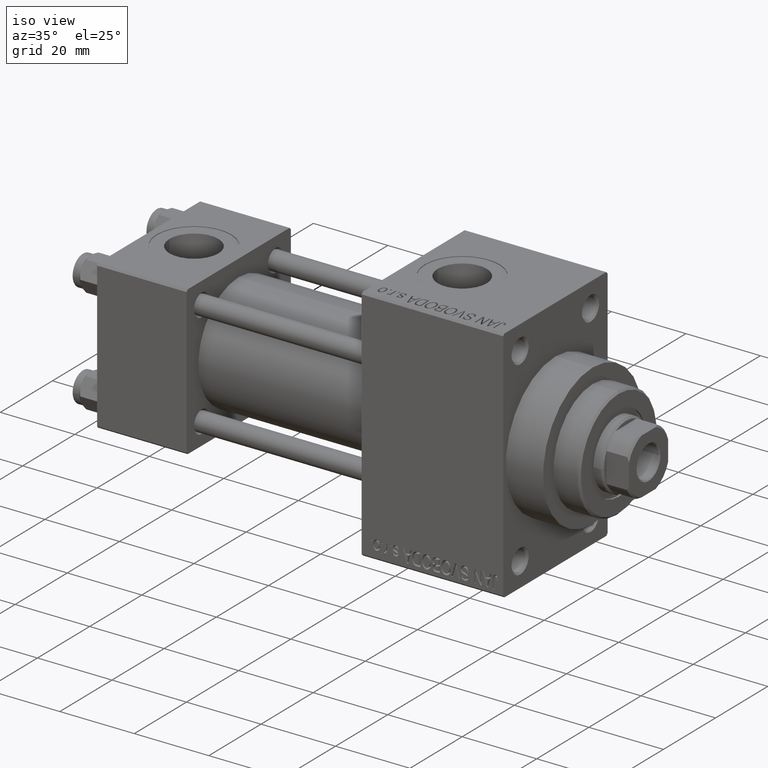
[diagram: clean part render]
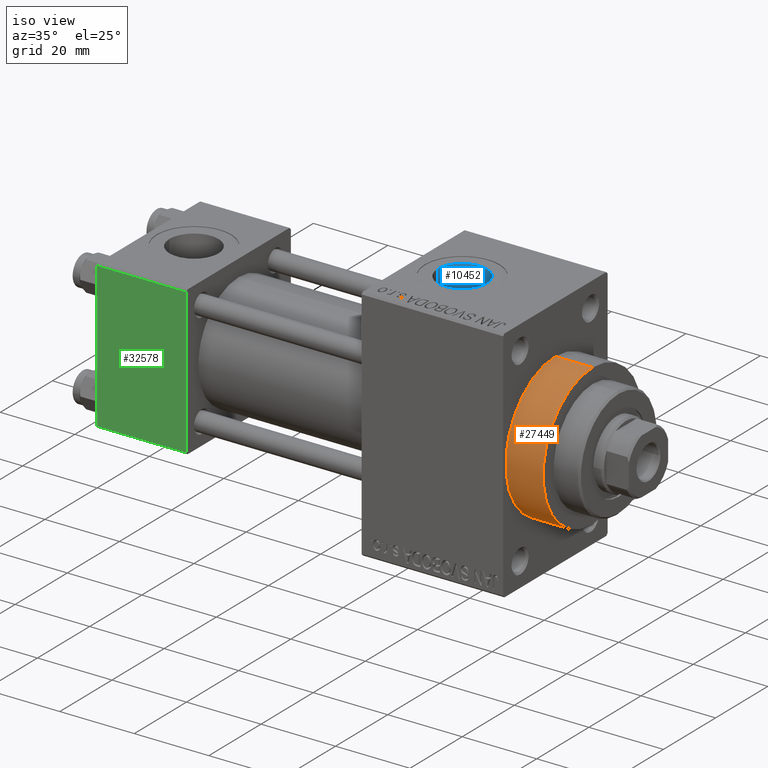
[diagram: same view with three faces highlighted in distinct colors, each labeled with its STEP entity id]
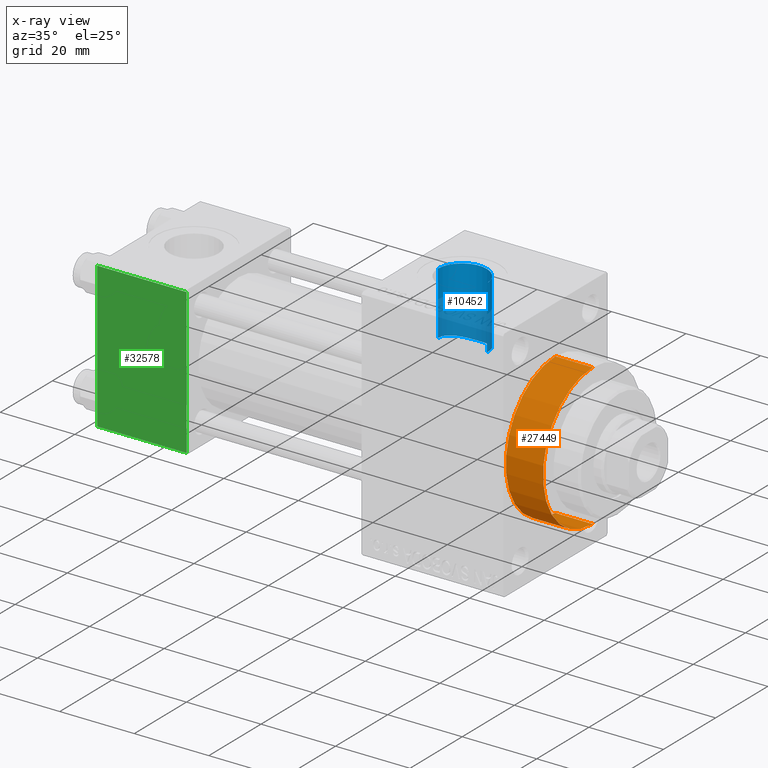
[diagram: x-ray of the same camera — body ghosted, the three highlighted faces saturated]
A machine part, iso view with three faces highlighted in distinct colors.
The next image is the same camera in x-ray (body ghosted, the three faces saturated) — at least one of them is partly hidden behind the body in this view.
Their STEP definitions:

[orange] entity #27449 — the highlighted cylindrical surface (partial cylindrical patch) has radius 19 mm, axis along (-1, -0, -0).
#84 = AXIS2_PLACEMENT_3D ( 'NONE', #14427, #40137, #22278 ) ;
#637 = VERTEX_POINT ( 'NONE', #45757 ) ;
#1617 = VERTEX_POINT ( 'NONE', #6230 ) ;
#4196 = FACE_OUTER_BOUND ( 'NONE', #10218, .T. ) ;
#5288 = AXIS2_PLACEMENT_3D ( 'NONE', #16024, #19576, #34108 ) ;
#6230 = CARTESIAN_POINT ( 'NONE',  ( 119.0000000000000142, 2.326828918379970970E-15, -19.00000000000000000 ) ) ;
#9041 = CARTESIAN_POINT ( 'NONE',  ( 109.0000000000000142, 0.000000000000000000, 0.000000000000000000 ) ) ;
#9934 = CIRCLE ( 'NONE', #46386, 19.00000000000000000 ) ;
#10218 = EDGE_LOOP ( 'NONE', ( #34345, #27118, #46099, #40204 ) ) ;
#10255 = CARTESIAN_POINT ( 'NONE',  ( 119.0000000000000142, 2.326828918379970970E-15, -19.00000000000000000 ) ) ;
#11572 = VECTOR ( 'NONE', #38993, 1000.000000000000000 ) ;
#13532 = CARTESIAN_POINT ( 'NONE',  ( 119.0000000000000142, 0.000000000000000000, 19.00000000000000000 ) ) ;
#14427 = CARTESIAN_POINT ( 'NONE',  ( 119.0000000000000142, 0.000000000000000000, 0.000000000000000000 ) ) ;
#16024 = CARTESIAN_POINT ( 'NONE',  ( 119.0000000000000142, 0.000000000000000000, 0.000000000000000000 ) ) ;
#16635 = DIRECTION ( 'NONE',  ( 1.000000000000000000, 0.000000000000000000, 0.000000000000000000 ) ) ;
#18952 = CIRCLE ( 'NONE', #5288, 19.00000000000000000 ) ;
#19576 = DIRECTION ( 'NONE',  ( 1.000000000000000000, 0.000000000000000000, 0.000000000000000000 ) ) ;
#19777 = EDGE_CURVE ( 'NONE', #41027, #1617, #18952, .T. ) ;
#22278 = DIRECTION ( 'NONE',  ( 0.000000000000000000, 0.000000000000000000, 1.000000000000000000 ) ) ;
#22529 = EDGE_CURVE ( 'NONE', #1617, #45206, #29274, .T. ) ;
#26079 = CYLINDRICAL_SURFACE ( 'NONE', #84, 19.00000000000000000 ) ;
#26582 = CARTESIAN_POINT ( 'NONE',  ( 119.0000000000000142, 0.000000000000000000, 19.00000000000000000 ) ) ;
#27118 = ORIENTED_EDGE ( 'NONE', *, *, #19777, .F. ) ;
#27449 = ADVANCED_FACE ( 'NONE', ( #4196 ), #26079, .T. ) ;
#29037 = DIRECTION ( 'NONE',  ( -1.000000000000000000, -0.000000000000000000, -0.000000000000000000 ) ) ;
#29274 = LINE ( 'NONE', #10255, #38060 ) ;
#29582 = EDGE_CURVE ( 'NONE', #41027, #637, #36133, .T. ) ;
#33205 = CARTESIAN_POINT ( 'NONE',  ( 109.0000000000000142, 2.326828918379970970E-15, -19.00000000000000000 ) ) ;
#34108 = DIRECTION ( 'NONE',  ( 0.000000000000000000, 0.000000000000000000, -1.000000000000000000 ) ) ;
#34345 = ORIENTED_EDGE ( 'NONE', *, *, #22529, .F. ) ;
#34501 = DIRECTION ( 'NONE',  ( 0.000000000000000000, 0.000000000000000000, -1.000000000000000000 ) ) ;
#36133 = LINE ( 'NONE', #13532, #11572 ) ;
#38060 = VECTOR ( 'NONE', #29037, 1000.000000000000000 ) ;
#38993 = DIRECTION ( 'NONE',  ( -1.000000000000000000, -0.000000000000000000, -0.000000000000000000 ) ) ;
#40137 = DIRECTION ( 'NONE',  ( -1.000000000000000000, -0.000000000000000000, -0.000000000000000000 ) ) ;
#40204 = ORIENTED_EDGE ( 'NONE', *, *, #45923, .T. ) ;
#41027 = VERTEX_POINT ( 'NONE', #26582 ) ;
#45206 = VERTEX_POINT ( 'NONE', #33205 ) ;
#45757 = CARTESIAN_POINT ( 'NONE',  ( 109.0000000000000142, 0.000000000000000000, 19.00000000000000000 ) ) ;
#45923 = EDGE_CURVE ( 'NONE', #637, #45206, #9934, .T. ) ;
#46099 = ORIENTED_EDGE ( 'NONE', *, *, #29582, .T. ) ;
#46386 = AXIS2_PLACEMENT_3D ( 'NONE', #9041, #16635, #34501 ) ;

[blue] entity #10452 — the highlighted cylindrical surface (edge-blend (fillet) strip) has radius 6.58 mm, axis along (0, 0, -1).
#2813 = CARTESIAN_POINT ( 'NONE',  ( 86.93701007993642804, 5.904078833575835183, 13.79040395297572985 ) ) ;
#3036 = CARTESIAN_POINT ( 'NONE',  ( 81.06803175326515998, 5.906171524794318728, 13.78947655901829528 ) ) ;
#3751 = CARTESIAN_POINT ( 'NONE',  ( 90.23682563937329348, 2.140524025907184047, 14.85190044064267312 ) ) ;
#4827 = CARTESIAN_POINT ( 'NONE',  ( 84.00000000000000000, -5.551115123125782702E-15, 31.80000000000000071 ) ) ;
#6405 = CARTESIAN_POINT ( 'NONE',  ( 77.84710630467387205, 2.341947469549874317, 14.81742038460376598 ) ) ;
#6634 = CARTESIAN_POINT ( 'NONE',  ( 79.98043743204576117, 5.227182705115210659, 14.06208721916829596 ) ) ;
#6827 = ORIENTED_EDGE ( 'NONE', *, *, #9859, .F. ) ;
#6863 = CARTESIAN_POINT ( 'NONE',  ( 85.08528084204601782, 6.493495105772938203, 13.52171438049335350 ) ) ;
#7109 = CARTESIAN_POINT ( 'NONE',  ( 77.64510382757426044, 1.720214188635518227, 14.90251519511849132 ) ) ;
#7347 = CARTESIAN_POINT ( 'NONE',  ( 89.89720342225038507, 2.926685009615093591, 14.71298356507631588 ) ) ;
#9859 = EDGE_CURVE ( 'NONE', #21688, #12116, #42003, .T. ) ;
#9961 = CARTESIAN_POINT ( 'NONE',  ( 88.95400289609001732, 4.351362456449749061, 14.35845843076087469 ) ) ;
#10124 = DIRECTION ( 'NONE',  ( -1.000000000000000000, 0.000000000000000000, 0.000000000000000000 ) ) ;
#10197 = CARTESIAN_POINT ( 'NONE',  ( 77.41999999999846693, 0.4408108815905923406, 15.00000000000000178 ) ) ;
#10353 = EDGE_LOOP ( 'NONE', ( #45382, #6827, #23328, #12633 ) ) ;
#10452 = ADVANCED_FACE ( 'NONE', ( #42727 ), #24851, .F. ) ;
#10485 = DIRECTION ( 'NONE',  ( 0.000000000000000000, 0.000000000000000000, -1.000000000000000000 ) ) ;
#12116 = VERTEX_POINT ( 'NONE', #28320 ) ;
#12633 = ORIENTED_EDGE ( 'NONE', *, *, #14979, .T. ) ;
#13524 = CARTESIAN_POINT ( 'NONE',  ( 77.46384016650830517, 0.8732144446945079297, 14.98062254080464761 ) ) ;
#13755 = CARTESIAN_POINT ( 'NONE',  ( 89.22355948097191458, 4.024233762615933685, 14.45476207357280707 ) ) ;
#14460 = CARTESIAN_POINT ( 'NONE',  ( 81.65991854996093480, 6.153547251564461362, 13.67998493002697025 ) ) ;
#14979 = EDGE_CURVE ( 'NONE', #25912, #22925, #22731, .T. ) ;
#17318 = CARTESIAN_POINT ( 'NONE',  ( 89.58192469419033444, 3.490619495914903059, 14.58935319092943672 ) ) ;
#17547 = CARTESIAN_POINT ( 'NONE',  ( 85.72230393178622876, 6.365353245950290173, 13.58275494734486344 ) ) ;
#17788 = CARTESIAN_POINT ( 'NONE',  ( 77.41999999999846693, -5.296980422238646302E-15, 15.00000000000000000 ) ) ;
#18254 = CARTESIAN_POINT ( 'NONE',  ( 78.09667706081033600, 2.938171775107376593, 14.71495177826866296 ) ) ;
#18384 = DIRECTION ( 'NONE',  ( 1.000000000000000000, 0.000000000000000000, 0.000000000000000000 ) ) ;
#20900 = CARTESIAN_POINT ( 'NONE',  ( 77.59193471617514604, 1.509957458704472621, 14.92532804554140036 ) ) ;
#21121 = CARTESIAN_POINT ( 'NONE',  ( 84.21314008025947828, 6.580153389134416386, 13.47967289681889724 ) ) ;
#21355 = CARTESIAN_POINT ( 'NONE',  ( 84.43353797962735996, 6.569364735547775780, 13.48495569663319316 ) ) ;
#21688 = VERTEX_POINT ( 'NONE', #44241 ) ;
#21830 = CARTESIAN_POINT ( 'NONE',  ( 78.65793375781611019, 3.847677443236450667, 14.49927615569091444 ) ) ;
#22731 = B_SPLINE_CURVE_WITH_KNOTS ( 'NONE', 3,
 ( #17788, #10197, #13524, #20900, #7109, #24695, #6405, #18254, #32786, #21830, #24923, #32310, #39219, #24464, #6634, #25166, #3036, #14460, #28026, #35419, #25405, #39444, #32543, #21121, #21355, #36126, #6863, #17547, #38984, #2813, #42561, #28504, #28733, #9961, #13755, #17318, #31836, #7347, #36353, #3751, #35881, #46340, #46814, #28265 ),
 .UNSPECIFIED., .F., .F.,
 ( 4, 2, 2, 2, 2, 2, 2, 2, 2, 2, 2, 2, 2, 2, 2, 2, 2, 2, 2, 2, 2, 4 ),
 ( 2.465485882955837351E-19, 0.001302545301134941207, 0.001953817951702415713, 0.002605090602269889786, 0.003907635903404838365, 0.004558908553972300728, 0.005210181204539763092, 0.006512726505674719044, 0.007815271806809674995, 0.008466544457377132155, 0.009117817107944591049, 0.01042036240907946720, 0.01107163505964688620, 0.01172290771021430519, 0.01302545301134910155, 0.01432799831248389617, 0.01563054361361869080, 0.01693308891475348368, 0.01758436156532086972, 0.01823563421588825575, 0.01953817951702301048, 0.02084072481815776520 ),
 .UNSPECIFIED. ) ;
#22874 = LINE ( 'NONE', #41212, #23961 ) ;
#22925 = VERTEX_POINT ( 'NONE', #45131 ) ;
#23328 = ORIENTED_EDGE ( 'NONE', *, *, #39606, .T. ) ;
#23961 = VECTOR ( 'NONE', #30473, 1000.000000000000000 ) ;
#24464 = CARTESIAN_POINT ( 'NONE',  ( 79.65067694899884998, 4.955724177415117282, 14.16121158718564388 ) ) ;
#24479 = AXIS2_PLACEMENT_3D ( 'NONE', #4827, #26704, #18384 ) ;
#24661 = VECTOR ( 'NONE', #10485, 1000.000000000000000 ) ;
#24695 = CARTESIAN_POINT ( 'NONE',  ( 77.77277641863413749, 2.136709780193654762, 14.84852071119359707 ) ) ;
#24851 = CYLINDRICAL_SURFACE ( 'NONE', #28309, 6.580000000001542837 ) ;
#24923 = CARTESIAN_POINT ( 'NONE',  ( 78.78696851675724133, 4.020719410615170908, 14.45209959771693953 ) ) ;
#25085 = CARTESIAN_POINT ( 'NONE',  ( 84.00000000000000000, -5.551115123125782702E-15, 54.80000000000000426 ) ) ;
#25166 = CARTESIAN_POINT ( 'NONE',  ( 80.69294009229216158, 5.704706568894307495, 13.87523185229586886 ) ) ;
#25405 = CARTESIAN_POINT ( 'NONE',  ( 82.49006127613500894, 6.408094086410812018, 13.56239578418782088 ) ) ;
#25912 = VERTEX_POINT ( 'NONE', #27746 ) ;
#26704 = DIRECTION ( 'NONE',  ( -0.000000000000000000, -0.000000000000000000, -1.000000000000000000 ) ) ;
#27746 = CARTESIAN_POINT ( 'NONE',  ( 77.41999999999846693, -5.296980422238646302E-15, 15.00000000000000000 ) ) ;
#28026 = CARTESIAN_POINT ( 'NONE',  ( 81.86212456467740139, 6.226794396204521576, 13.64668269369992082 ) ) ;
#28265 = CARTESIAN_POINT ( 'NONE',  ( 90.58000000000154728, 1.836977542105646236E-15, 15.00000000000000000 ) ) ;
#28309 = AXIS2_PLACEMENT_3D ( 'NONE', #25085, #38906, #10124 ) ;
#28320 = CARTESIAN_POINT ( 'NONE',  ( 90.58000000000154728, -4.745297529286635122E-15, 31.80000000000000071 ) ) ;
#28504 = CARTESIAN_POINT ( 'NONE',  ( 88.02033275031804749, 5.226361487975774267, 14.06236584841004955 ) ) ;
#28733 = CARTESIAN_POINT ( 'NONE',  ( 88.35399596300975134, 4.951688507566233355, 14.16264327939262735 ) ) ;
#30473 = DIRECTION ( 'NONE',  ( 0.000000000000000000, 0.000000000000000000, -1.000000000000000000 ) ) ;
#31836 = CARTESIAN_POINT ( 'NONE',  ( 89.69387857465208924, 3.304881257477396250, 14.63267338546467577 ) ) ;
#32133 = LINE ( 'NONE', #46638, #24661 ) ;
#32310 = CARTESIAN_POINT ( 'NONE',  ( 79.05826729314385659, 4.349845937290875320, 14.35646919277375133 ) ) ;
#32543 = CARTESIAN_POINT ( 'NONE',  ( 83.55966808500065213, 6.579688220422989176, 13.47989996406176161 ) ) ;
#32786 = CARTESIAN_POINT ( 'NONE',  ( 78.29949032696458744, 3.314236448995914852, 14.63387712620472669 ) ) ;
#35419 = CARTESIAN_POINT ( 'NONE',  ( 82.27698630176803363, 6.354109192110635185, 13.58787008216770609 ) ) ;
#35881 = CARTESIAN_POINT ( 'NONE',  ( 90.36416365787358984, 1.728245529772049816, 14.90637689774611907 ) ) ;
#36126 = CARTESIAN_POINT ( 'NONE',  ( 84.87005215694389904, 6.525911235424165291, 13.50603812064009546 ) ) ;
#36353 = CARTESIAN_POINT ( 'NONE',  ( 89.98924677767014657, 2.733346360514973483, 14.75022085002531469 ) ) ;
#37586 = EDGE_CURVE ( 'NONE', #12116, #22925, #22874, .T. ) ;
#38906 = DIRECTION ( 'NONE',  ( 0.000000000000000000, 0.000000000000000000, -1.000000000000000000 ) ) ;
#38984 = CARTESIAN_POINT ( 'NONE',  ( 86.13736868166603244, 6.238255381223174467, 13.64249089638570922 ) ) ;
#39219 = CARTESIAN_POINT ( 'NONE',  ( 79.20105496950384349, 4.506814825953895820, 14.30780902372815078 ) ) ;
#39444 = CARTESIAN_POINT ( 'NONE',  ( 83.12893832321880438, 6.536542712754454421, 13.50120758574326807 ) ) ;
#39606 = EDGE_CURVE ( 'NONE', #21688, #25912, #32133, .T. ) ;
#41212 = CARTESIAN_POINT ( 'NONE',  ( 90.58000000000154728, -4.745297529286635122E-15, 54.80000000000000426 ) ) ;
#42003 = CIRCLE ( 'NONE', #24479, 6.580000000001542837 ) ;
#42561 = CARTESIAN_POINT ( 'NONE',  ( 87.31276032603489057, 5.701188371605095284, 13.87665084986288377 ) ) ;
#42727 = FACE_OUTER_BOUND ( 'NONE', #10353, .T. ) ;
#44241 = CARTESIAN_POINT ( 'NONE',  ( 77.41999999999846693, -5.551115123125782702E-15, 31.80000000000000071 ) ) ;
#45131 = CARTESIAN_POINT ( 'NONE',  ( 90.58000000000154728, 1.836977542105646236E-15, 15.00000000000000000 ) ) ;
#45382 = ORIENTED_EDGE ( 'NONE', *, *, #37586, .F. ) ;
#46340 = CARTESIAN_POINT ( 'NONE',  ( 90.53743112578213470, 0.8668367499309682644, 14.98117147881985467 ) ) ;
#46638 = CARTESIAN_POINT ( 'NONE',  ( 77.41999999999846693, -5.551115123125782702E-15, 54.80000000000000426 ) ) ;
#46814 = CARTESIAN_POINT ( 'NONE',  ( 90.58000000000153307, 0.4343068856191659721, 15.00000000000000355 ) ) ;

[green] entity #32578 — the highlighted planar face has unit normal (0, 1, 0).
#3016 = DIRECTION ( 'NONE',  ( -1.000000000000000000, 0.000000000000000000, 0.000000000000000000 ) ) ;
#3370 = ORIENTED_EDGE ( 'NONE', *, *, #26978, .T. ) ;
#3699 = DIRECTION ( 'NONE',  ( -0.000000000000000000, 1.000000000000000000, 8.673617379884036705E-17 ) ) ;
#4058 = AXIS2_PLACEMENT_3D ( 'NONE', #17968, #3699, #39163 ) ;
#4074 = VECTOR ( 'NONE', #20724, 1000.000000000000000 ) ;
#4364 = CARTESIAN_POINT ( 'NONE',  ( 0.000000000000000000, -20.00000000000000355, 19.99999999999998934 ) ) ;
#6182 = VECTOR ( 'NONE', #37437, 1000.000000000000000 ) ;
#9290 = ORIENTED_EDGE ( 'NONE', *, *, #12957, .T. ) ;
#10134 = LINE ( 'NONE', #35581, #16759 ) ;
#10229 = EDGE_CURVE ( 'NONE', #16404, #46964, #32052, .T. ) ;
#11023 = CARTESIAN_POINT ( 'NONE',  ( 24.00000000000000000, -20.00000000000000355, 19.49999999999998224 ) ) ;
#12957 = EDGE_CURVE ( 'NONE', #41437, #39745, #39760, .T. ) ;
#13737 = CARTESIAN_POINT ( 'NONE',  ( 24.00000000000000000, -20.00000000000000355, 19.49999999999998224 ) ) ;
#16404 = VERTEX_POINT ( 'NONE', #11023 ) ;
#16759 = VECTOR ( 'NONE', #27507, 1000.000000000000000 ) ;
#16869 = CARTESIAN_POINT ( 'NONE',  ( 24.00000000000000000, -20.00000000000000000, -19.49999999999999645 ) ) ;
#17968 = CARTESIAN_POINT ( 'NONE',  ( 24.00000000000000000, -20.00000000000000355, 19.99999999999998934 ) ) ;
#20724 = DIRECTION ( 'NONE',  ( 1.000000000000000000, 0.000000000000000000, 0.000000000000000000 ) ) ;
#21780 = PLANE ( 'NONE',  #4058 ) ;
#22008 = FACE_OUTER_BOUND ( 'NONE', #31798, .T. ) ;
#25867 = EDGE_CURVE ( 'NONE', #16404, #39745, #10134, .T. ) ;
#26978 = EDGE_CURVE ( 'NONE', #46964, #41437, #36963, .T. ) ;
#27236 = CARTESIAN_POINT ( 'NONE',  ( 0.000000000000000000, -20.00000000000000000, -19.49999999999999645 ) ) ;
#27507 = DIRECTION ( 'NONE',  ( 0.000000000000000000, 8.673617379884036705E-17, -1.000000000000000000 ) ) ;
#28086 = CARTESIAN_POINT ( 'NONE',  ( 24.00000000000000000, -20.00000000000000000, -19.49999999999999645 ) ) ;
#31798 = EDGE_LOOP ( 'NONE', ( #3370, #9290, #43651, #46551 ) ) ;
#32052 = LINE ( 'NONE', #13737, #41258 ) ;
#32578 = ADVANCED_FACE ( 'NONE', ( #22008 ), #21780, .F. ) ;
#35581 = CARTESIAN_POINT ( 'NONE',  ( 24.00000000000000000, -20.00000000000000355, 19.99999999999998934 ) ) ;
#36963 = LINE ( 'NONE', #4364, #6182 ) ;
#37437 = DIRECTION ( 'NONE',  ( 0.000000000000000000, 8.673617379884036705E-17, -1.000000000000000000 ) ) ;
#39163 = DIRECTION ( 'NONE',  ( 0.000000000000000000, -8.673617379884036705E-17, 1.000000000000000000 ) ) ;
#39745 = VERTEX_POINT ( 'NONE', #16869 ) ;
#39760 = LINE ( 'NONE', #28086, #4074 ) ;
#41258 = VECTOR ( 'NONE', #3016, 1000.000000000000000 ) ;
#41437 = VERTEX_POINT ( 'NONE', #27236 ) ;
#43094 = CARTESIAN_POINT ( 'NONE',  ( 0.000000000000000000, -20.00000000000000355, 19.49999999999998224 ) ) ;
#43651 = ORIENTED_EDGE ( 'NONE', *, *, #25867, .F. ) ;
#46551 = ORIENTED_EDGE ( 'NONE', *, *, #10229, .T. ) ;
#46964 = VERTEX_POINT ( 'NONE', #43094 ) ;